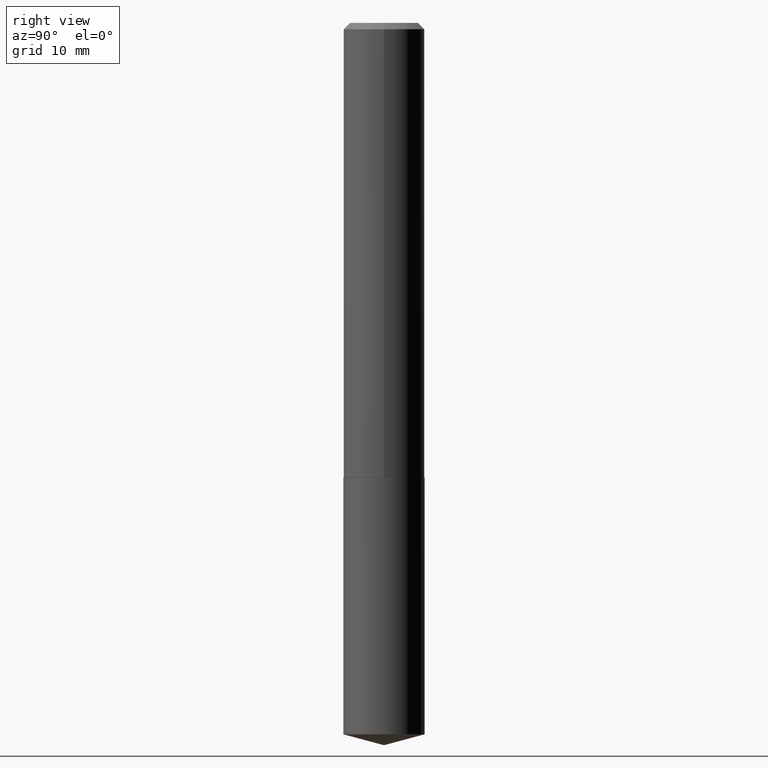
[diagram: clean part render]
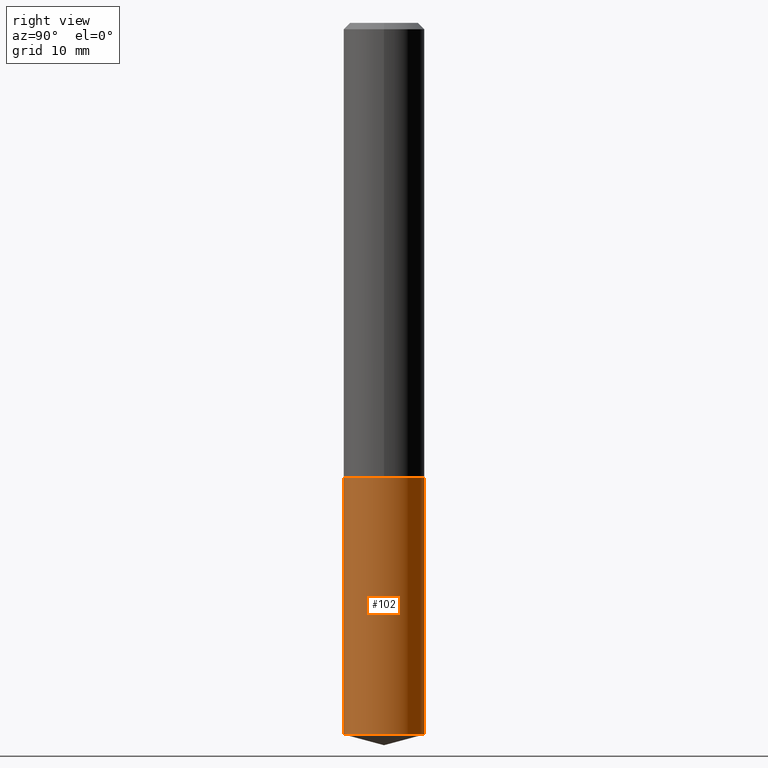
[diagram: same view with one face highlighted and labeled with its STEP entity id]
A machine part, right view. The second image highlights one B-rep face of the part: STEP entity #102.
In plain terms, the highlighted cylindrical surface (partial cylindrical patch) has radius 5 mm, axis along (-0, 0, 1).
Its self-contained STEP definition (entity closure, byte-faithful):
#9 = EDGE_CURVE ( 'NONE', #365, #73, #378, .T. ) ;
#16 = VECTOR ( 'NONE', #315, 39.37007874015748143 ) ;
#28 = EDGE_LOOP ( 'NONE', ( #186, #65, #334, #221 ) ) ;
#37 = CIRCLE ( 'NONE', #255, 0.1968500000000000250 ) ;
#54 = CARTESIAN_POINT ( 'NONE',  ( 1.398703375343841801E-15, 0.1968499999999879790, -3.451154201469934790 ) ) ;
#60 = CARTESIAN_POINT ( 'NONE',  ( 8.439334720246109226E-29, -1.205014919401034769E-14, -3.451154201469934346 ) ) ;
#65 = ORIENTED_EDGE ( 'NONE', *, *, #108, .T. ) ;
#73 = VERTEX_POINT ( 'NONE', #145 ) ;
#77 = DIRECTION ( 'NONE',  ( -2.445183817949731968E-29, 3.491889458216768610E-15, 1.000000000000000000 ) ) ;
#83 = DIRECTION ( 'NONE',  ( -2.445183817949731968E-29, 3.491889458216768216E-15, 1.000000000000000000 ) ) ;
#102 = ADVANCED_FACE ( 'NONE', ( #323 ), #293, .T. ) ;
#108 = EDGE_CURVE ( 'NONE', #284, #73, #344, .T. ) ;
#112 = VECTOR ( 'NONE', #77, 39.37007874015748143 ) ;
#145 = CARTESIAN_POINT ( 'NONE',  ( 1.398703375343841801E-15, 0.1968499999999923367, -2.204700000000000326 ) ) ;
#186 = ORIENTED_EDGE ( 'NONE', *, *, #197, .T. ) ;
#197 = EDGE_CURVE ( 'NONE', #249, #284, #37, .T. ) ;
#216 = LINE ( 'NONE', #248, #16 ) ;
#221 = ORIENTED_EDGE ( 'NONE', *, *, #368, .F. ) ;
#236 = DIRECTION ( 'NONE',  ( -2.445183817949731968E-29, 3.491889458216768216E-15, 1.000000000000000000 ) ) ;
#248 = CARTESIAN_POINT ( 'NONE',  ( -1.374596203102487571E-15, -0.1968500000000076855, -2.204699999999998550 ) ) ;
#249 = VERTEX_POINT ( 'NONE', #360 ) ;
#255 = AXIS2_PLACEMENT_3D ( 'NONE', #60, #236, #268 ) ;
#257 = DIRECTION ( 'NONE',  ( -6.982962677686265133E-15, -1.000000000000000000, 4.163344669033674845E-15 ) ) ;
#268 = DIRECTION ( 'NONE',  ( -6.982962677686265133E-15, -1.000000000000000000, 2.775563112689116301E-15 ) ) ;
#275 = CARTESIAN_POINT ( 'NONE',  ( -1.374596203102487571E-15, -0.1968500000000076855, -2.204699999999998550 ) ) ;
#284 = VERTEX_POINT ( 'NONE', #54 ) ;
#291 = CARTESIAN_POINT ( 'NONE',  ( 1.398703375343810839E-15, 0.1968499999999923367, -2.204700000000000326 ) ) ;
#293 = CYLINDRICAL_SURFACE ( 'NONE', #309, 0.1968500000000000250 ) ;
#300 = DIRECTION ( 'NONE',  ( -6.982962677686265133E-15, -1.000000000000000000, 4.163344669033674845E-15 ) ) ;
#309 = AXIS2_PLACEMENT_3D ( 'NONE', #350, #382, #257 ) ;
#315 = DIRECTION ( 'NONE',  ( -2.445183817949731968E-29, 3.491889458216768610E-15, 1.000000000000000000 ) ) ;
#323 = FACE_OUTER_BOUND ( 'NONE', #28, .T. ) ;
#334 = ORIENTED_EDGE ( 'NONE', *, *, #9, .F. ) ;
#344 = LINE ( 'NONE', #291, #112 ) ;
#345 = AXIS2_PLACEMENT_3D ( 'NONE', #374, #83, #300 ) ;
#350 = CARTESIAN_POINT ( 'NONE',  ( 5.391525076996369035E-29, -7.697668907747481548E-15, -2.204699999999999438 ) ) ;
#360 = CARTESIAN_POINT ( 'NONE',  ( -1.374596203102457200E-15, -0.1968500000000120709, -3.451154201469933902 ) ) ;
#365 = VERTEX_POINT ( 'NONE', #275 ) ;
#368 = EDGE_CURVE ( 'NONE', #249, #365, #216, .T. ) ;
#374 = CARTESIAN_POINT ( 'NONE',  ( 5.391525076996369035E-29, -7.697668907747481548E-15, -2.204699999999999438 ) ) ;
#378 = CIRCLE ( 'NONE', #345, 0.1968500000000000250 ) ;
#382 = DIRECTION ( 'NONE',  ( -2.445183817949731968E-29, 3.491889458216768216E-15, 1.000000000000000000 ) ) ;